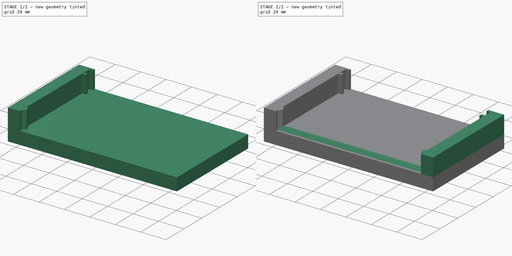
[diagram: build sequence overview — one tinted view per stage of 2, left to right]
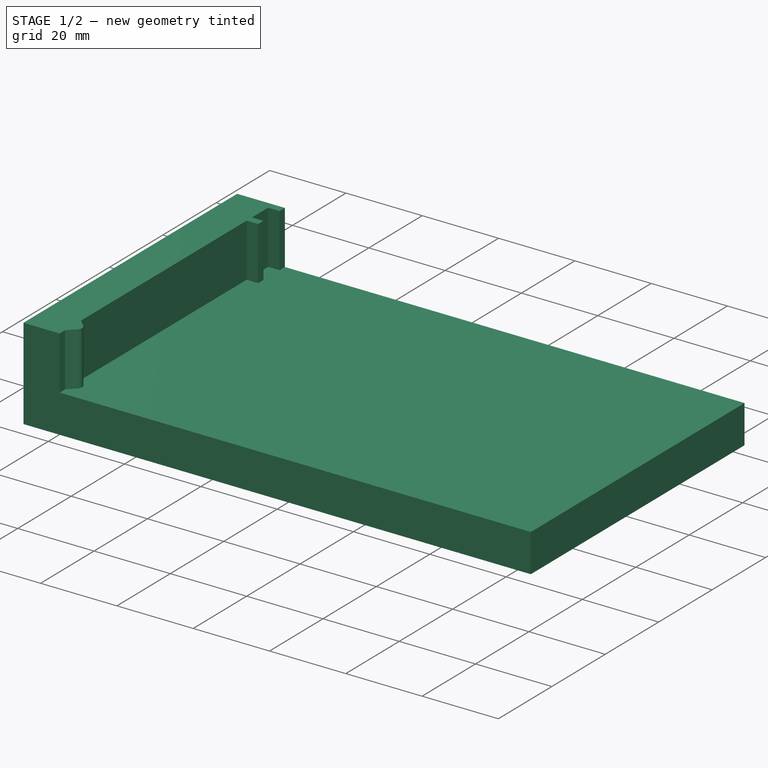
[diagram: stage 1 of 2 — iso view after this stage's code; geometry added in this stage tinted green]
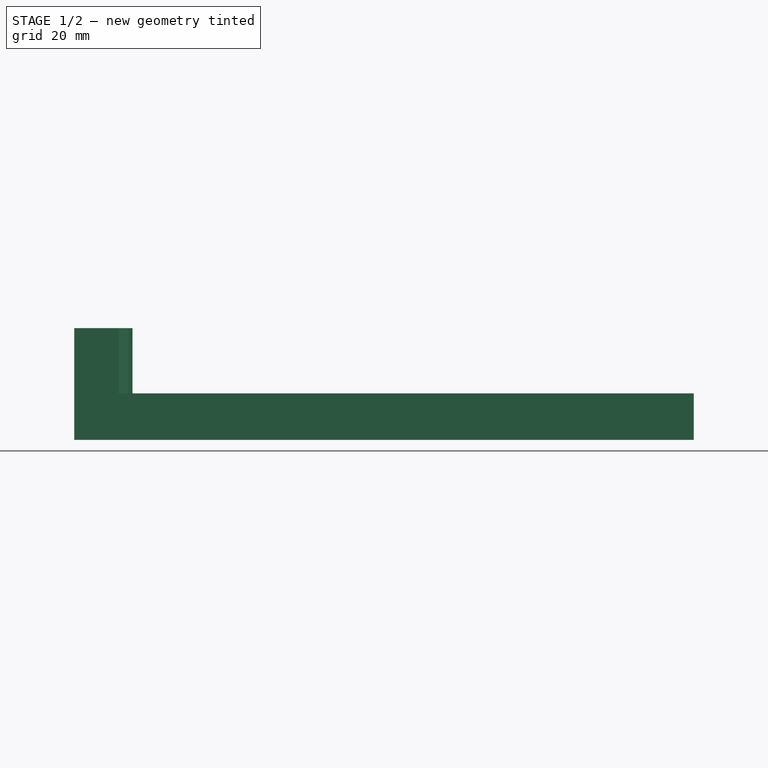
[diagram: stage 1 of 2 — front view after this stage's code; geometry added in this stage tinted green]
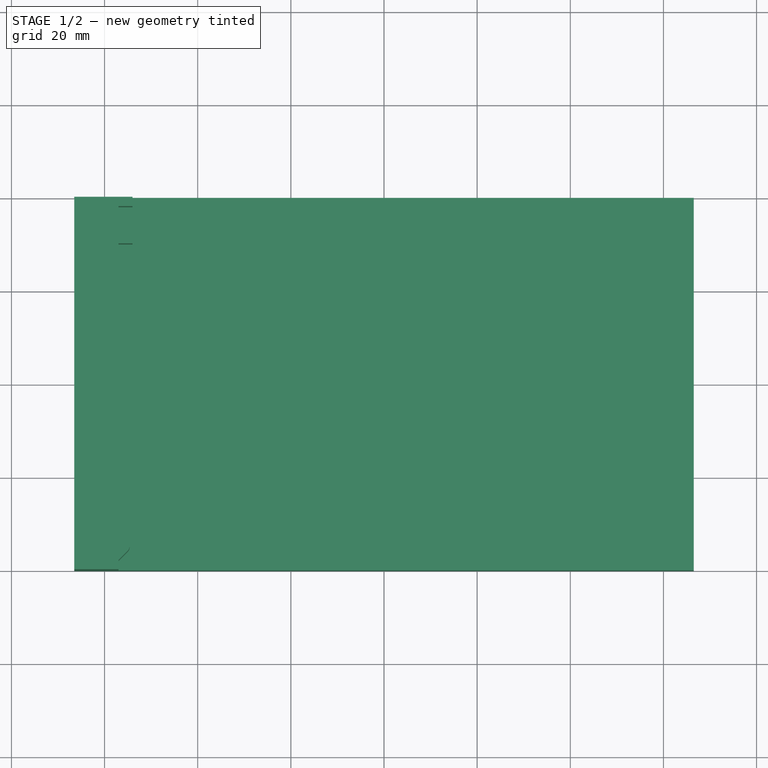
[diagram: stage 1 of 2 — top view after this stage's code; geometry added in this stage tinted green]
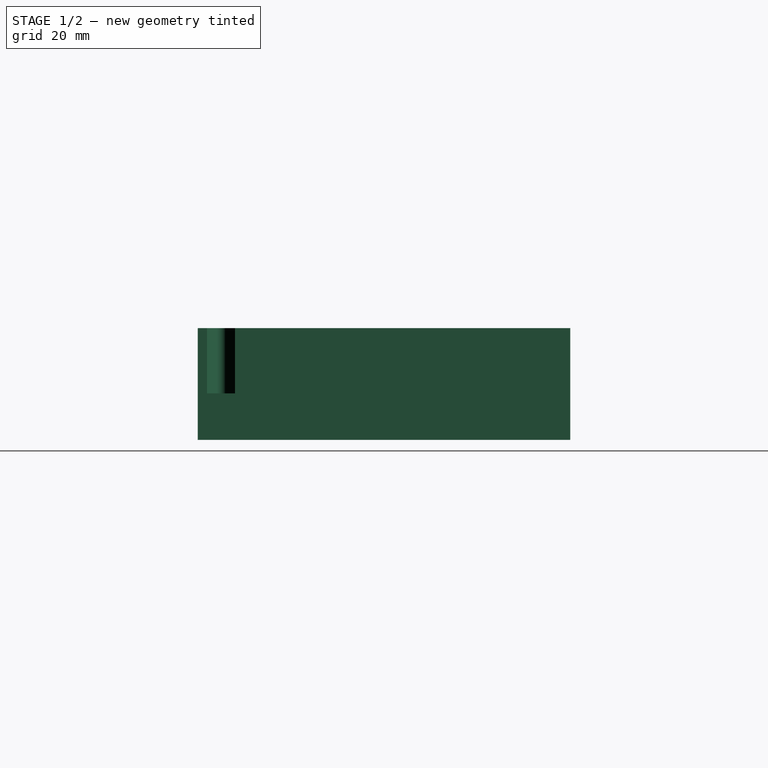
[diagram: stage 1 of 2 — right view after this stage's code; geometry added in this stage tinted green]
FCSTD DOCUMENT  (FreeCAD 0.17R13541 (Git))
Label: BikeBase3
License: All rights reserved
LicenseURL: http://en.wikipedia.org/wiki/All_rights_reserved
objects: Sketcher::SketchObject×3, PartDesign::Pad×3, PartDesign::Mirrored×1, PartDesign::Body×1
note: 11 computed .brp shape members not serialized (recipe doc carries the construction recipe); baked Part::Feature solids carry a one-line shape summary decoded from their .brp

FEATURE [Sketcher::SketchObject] Sketch
  MapMode = 5
  Support = -> [XY_Plane]
  sketch-geometry (4):
    g0: LineSegment StartX=-66.5 StartY=-40 StartZ=0 EndX=66.5 EndY=-40 EndZ=0
    g1: LineSegment StartX=66.5 StartY=-40 StartZ=0 EndX=66.5 EndY=40 EndZ=0
    g2: LineSegment StartX=66.5 StartY=40 StartZ=0 EndX=-66.5 EndY=40 EndZ=0
    g3: LineSegment StartX=-66.5 StartY=40 StartZ=0 EndX=-66.5 EndY=-40 EndZ=0
  constraints (11):
    c: Coincident(g0,g1)
    c: Coincident(g1,g2)
    c: Coincident(g2,g3)
    c: Coincident(g3,g0)
    c: Horizontal(g0)
    c: Horizontal(g2)
    c: Vertical(g1)
    c: Vertical(g3)
    c: Symmetric(g1,g0,g-1)
    c: DistanceY(g1,g1) = 80
    c: DistanceX(g0,g0) = 133
FEATURE [PartDesign::Pad] Pad
  Length = 10
  Length2 = 100
  Profile = -> Sketch
  Type = 0
FEATURE [Sketcher::SketchObject] Sketch001
  ExternalGeometry = -> [Pad]
  MapMode = 5
  Support = -> [XY_Plane]
  sketch-geometry (14):
    g0: LineSegment StartX=-66.5 StartY=-40 StartZ=0 EndX=-66.5 EndY=40 EndZ=0
    g1: LineSegment StartX=-66.5 StartY=40 StartZ=0 EndX=-54 EndY=40 EndZ=0
    g2: LineSegment StartX=-54 StartY=40 StartZ=0 EndX=-54 EndY=38 EndZ=0
    g3: LineSegment StartX=-54 StartY=38 StartZ=0 EndX=-57 EndY=38 EndZ=0
    g4: LineSegment StartX=-57 StartY=38 StartZ=0 EndX=-57 EndY=32 EndZ=0
    g5: LineSegment StartX=-57 StartY=32 StartZ=0 EndX=-54 EndY=32 EndZ=0
    g6: LineSegment StartX=-54 StartY=32 StartZ=0 EndX=-54 EndY=30 EndZ=0
    g7: LineSegment StartX=-54 StartY=30 StartZ=0 EndX=-57 EndY=30 EndZ=0
    g8: LineSegment StartX=-57 StartY=30 StartZ=0 EndX=-57 EndY=-32 EndZ=0
    g9: LineSegment StartX=-57 StartY=-32 StartZ=0 EndX=-55.0607 EndY=-33.9393 EndZ=0
    g10: LineSegment StartX=-55.0607 StartY=-36.0607 StartZ=0 EndX=-57 EndY=-38 EndZ=0
    g11: LineSegment StartX=-57 StartY=-38 StartZ=0 EndX=-57 EndY=-40 EndZ=0
    g12: LineSegment StartX=-57 StartY=-40 StartZ=0 EndX=-66.5 EndY=-40 EndZ=0
    g13: ArcOfCircle CenterX=-56.1213 CenterY=-35 CenterZ=0 NormalX=0 NormalY=0 NormalZ=1 AngleXU=0 Radius=1.5 StartAngle=5.49779 EndAngle=7.06858
  constraints (39):
    c: Coincident(g0,g-3)
    c: Coincident(g0,g-3)
    c: Coincident(g1,g0)
    c: Horizontal(g1)
    c: Coincident(g2,g1)
    c: Vertical(g2)
    c: Coincident(g3,g2)
    c: Coincident(g4,g3)
    c: Vertical(g4)
    c: Coincident(g5,g4)
    c: Horizontal(g5)
    c: Coincident(g6,g5)
    c: Coincident(g7,g6)
    c: Horizontal(g7)
    c: Coincident(g8,g7)
    c: Vertical(g8)
    c: Coincident(g9,g8)
    c: Coincident(g12,g11)
    c: Coincident(g12,g0)
    c: Distance(g1) = 12.5
    c: Distance(g2) = 2
    c: Distance(g3) = 3
    c: Distance(g4) = 6
    c: Distance(g6) = 2
    c: Distance(g7) = 3
    c: Horizontal(g3)
    c: Distance(g5) = 3
    c: Vertical(g6)
    c: Coincident(g10,g11)
    c: Horizontal(g12)
    c: Vertical(g11)
    c: Angle(g11,g10) = 2.35619
    c: Perpendicular(g9,g10)
    c: DistanceX(g12,g12) = 9.5
    c: Distance(g11) = 2
    c: DistanceY(g10,g8) = 6
    c: Tangent(g9,g13) = 1.5708
    c: Tangent(g10,g13) = 1.5708
    c: Radius(g13) = 1.5
FEATURE [PartDesign::Pad] Pad001
  BaseFeature = -> Pad
  Length = 24
  Length2 = 100
  Profile = -> Sketch001
  Type = 0
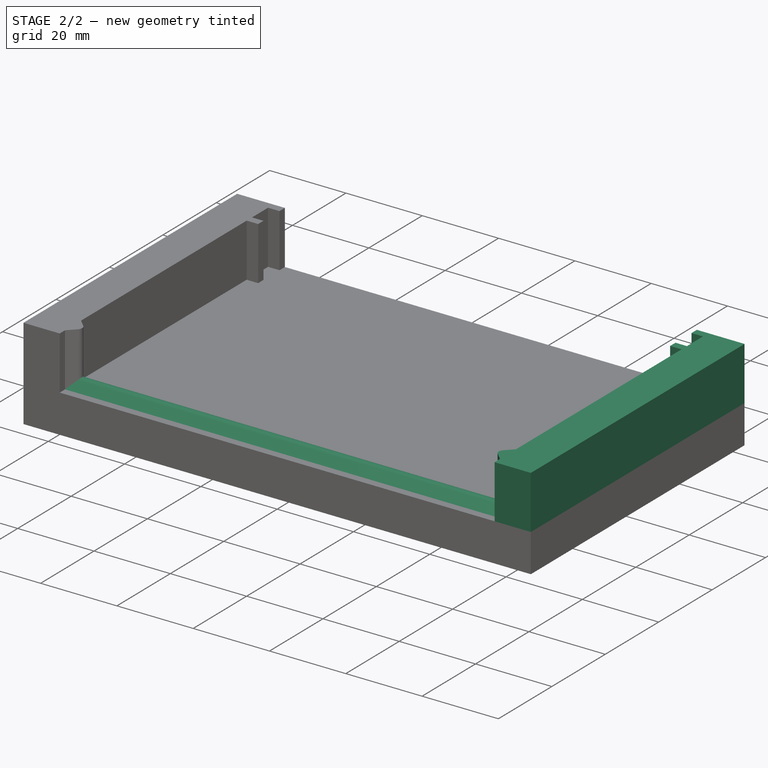
[diagram: stage 2 of 2 — iso view after this stage's code; geometry added in this stage tinted green]
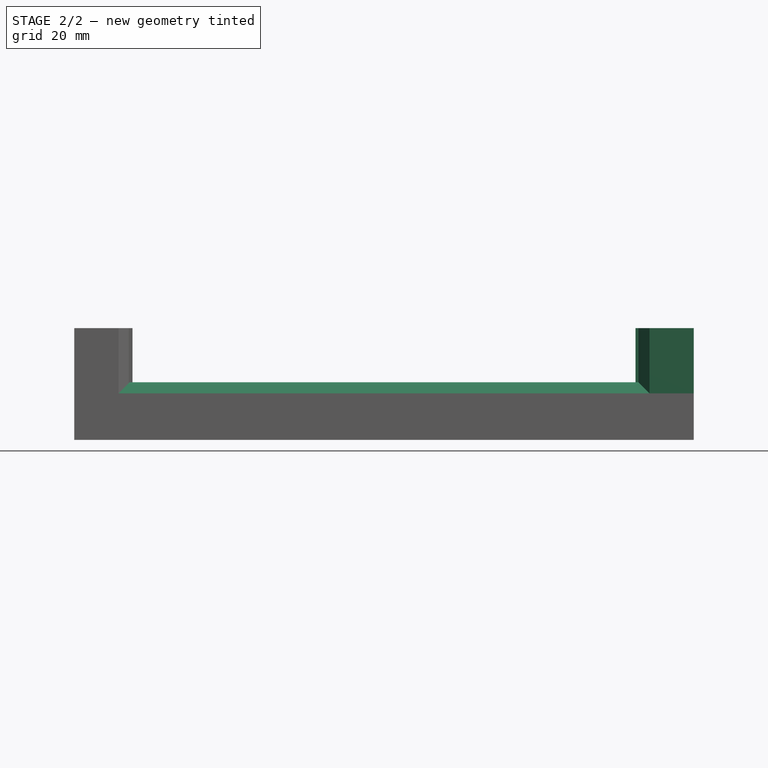
[diagram: stage 2 of 2 — front view after this stage's code; geometry added in this stage tinted green]
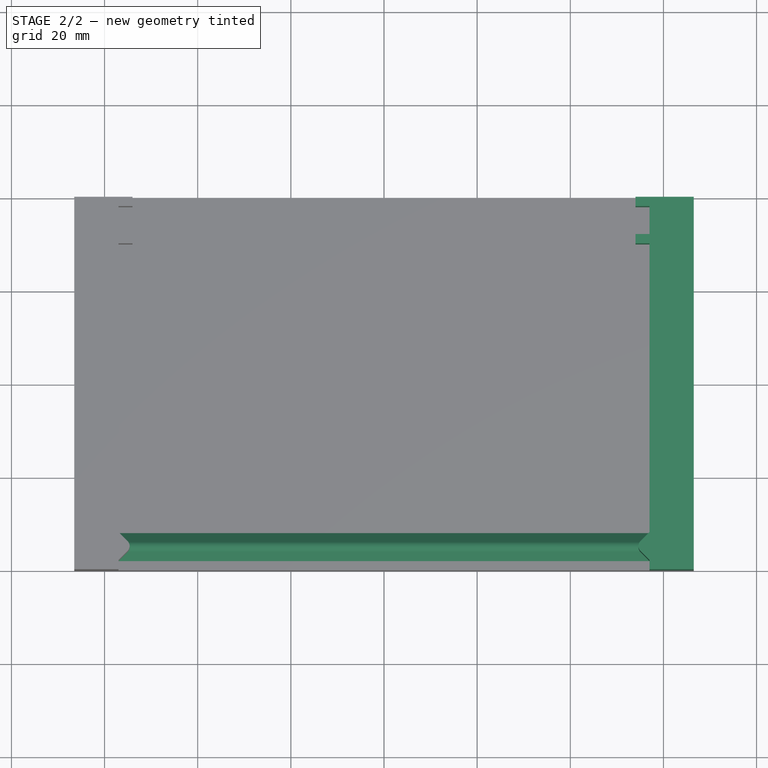
[diagram: stage 2 of 2 — top view after this stage's code; geometry added in this stage tinted green]
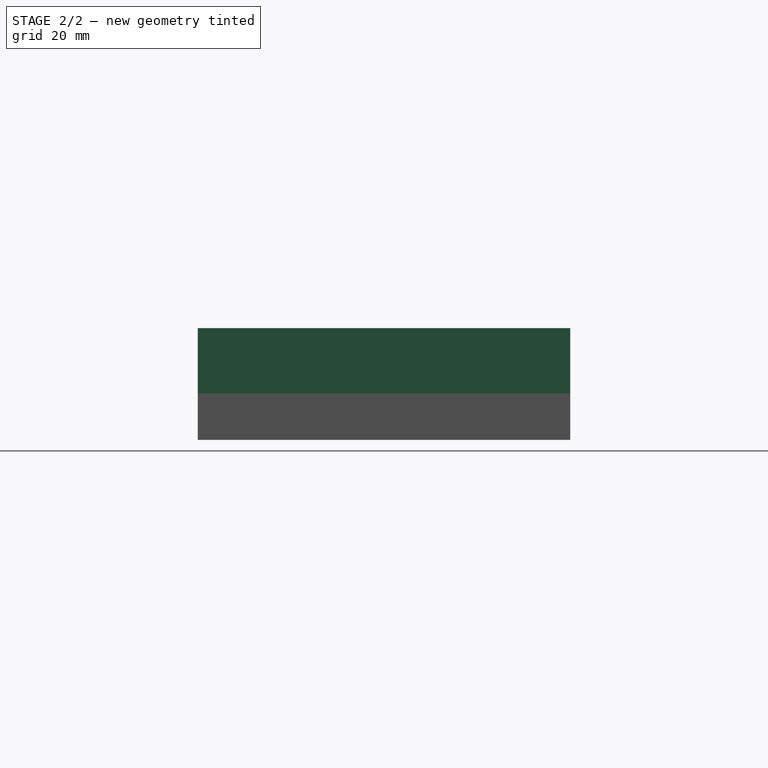
[diagram: stage 2 of 2 — right view after this stage's code; geometry added in this stage tinted green]
FEATURE [PartDesign::Mirrored] Mirrored
  BaseFeature = -> Pad001
  MirrorPlane = -> Sketch001 [V_Axis]
  Originals = -> [Pad001]
FEATURE [Sketcher::SketchObject] Sketch002
  ExternalGeometry = -> [Mirrored]
  MapMode = 5
  Placement = pos=(-66.5,0,0) rot=(0.57735,-0.57735,-0.57735;2.0944rad)
  Support = -> [Mirrored]
  sketch-geometry (4):
    g0: LineSegment StartX=32 StartY=10 StartZ=0 EndX=33.9393 EndY=11.9393 EndZ=0
    g1: LineSegment StartX=36.0607 StartY=11.9393 StartZ=0 EndX=38 EndY=10 EndZ=0
    g2: LineSegment StartX=38 StartY=10 StartZ=0 EndX=32 EndY=10 EndZ=0
    g3: ArcOfCircle CenterX=35 CenterY=10.8787 CenterZ=0 NormalX=0 NormalY=0 NormalZ=1 AngleXU=0 Radius=1.5 StartAngle=0.785398 EndAngle=2.35619
  constraints (11):
    c: Coincident(g2,g1)
    c: Coincident(g2,g0)
    c: Horizontal(g2)
    c: DistanceY(g0) = 10
    c: DistanceX(g1,g-3) = 2
    c: DistanceX(g0,g1) = 6
    c: Angle(g2,g0) = 0.785398
    c: Angle(g1,g2) = 0.785398
    c: Tangent(g0,g3) = 1.5708
    c: Tangent(g1,g3) = 1.5708
    c: Radius(g3) = 1.5
FEATURE [PartDesign::Pad] Pad002
  BaseFeature = -> Mirrored
  Length = 133
  Length2 = 100
  Profile = -> Sketch002
  Reversed = true
  Type = 0
FEATURE [PartDesign::Body] Body
  Group = -> [Sketch,Pad,Sketch001,Pad001,Mirrored,Sketch002,Pad002]
  Origin = -> Origin
  Tip = -> Pad001
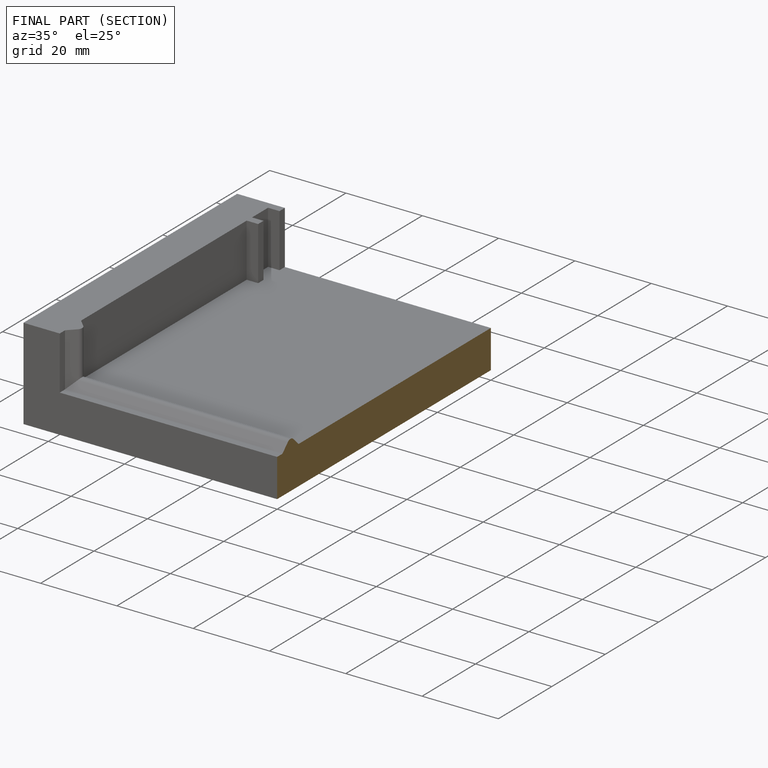
[diagram: finished part — half-section view (interior)]
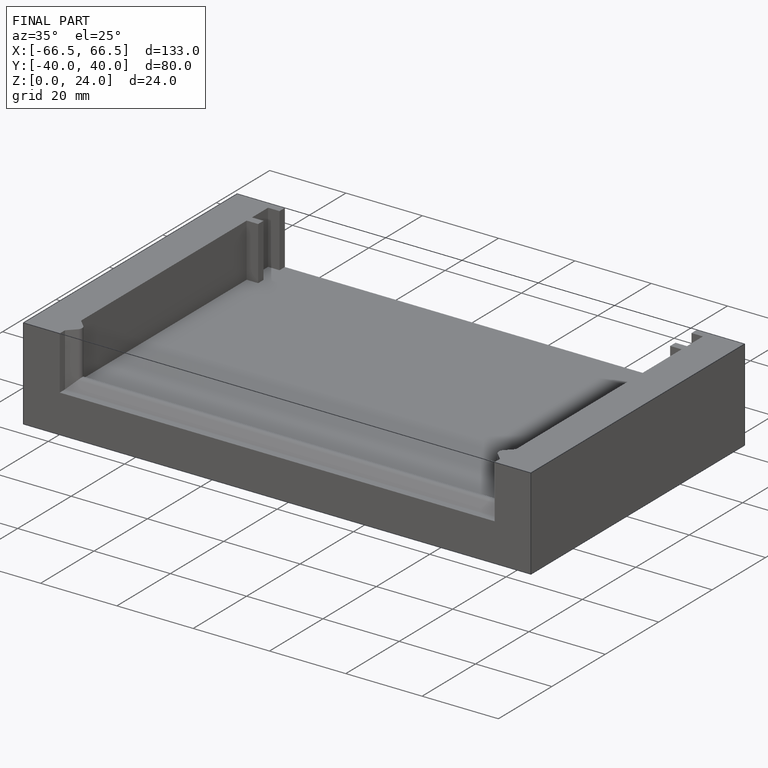
[diagram: finished part — iso view with bounding-box wireframe]
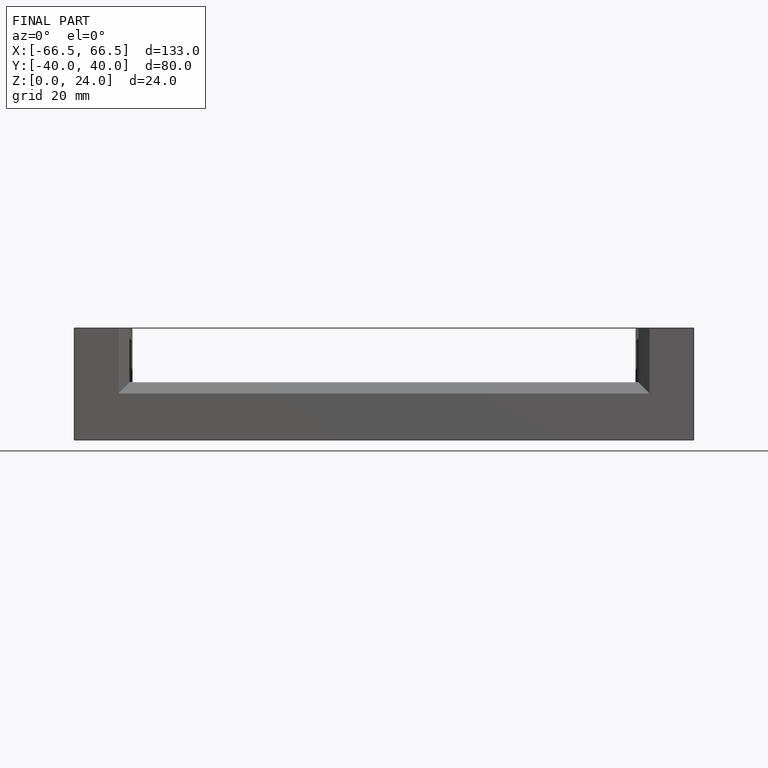
[diagram: finished part — front view with bounding-box wireframe]
